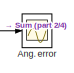
[diagram: root canvas - part 1/4, top center region]
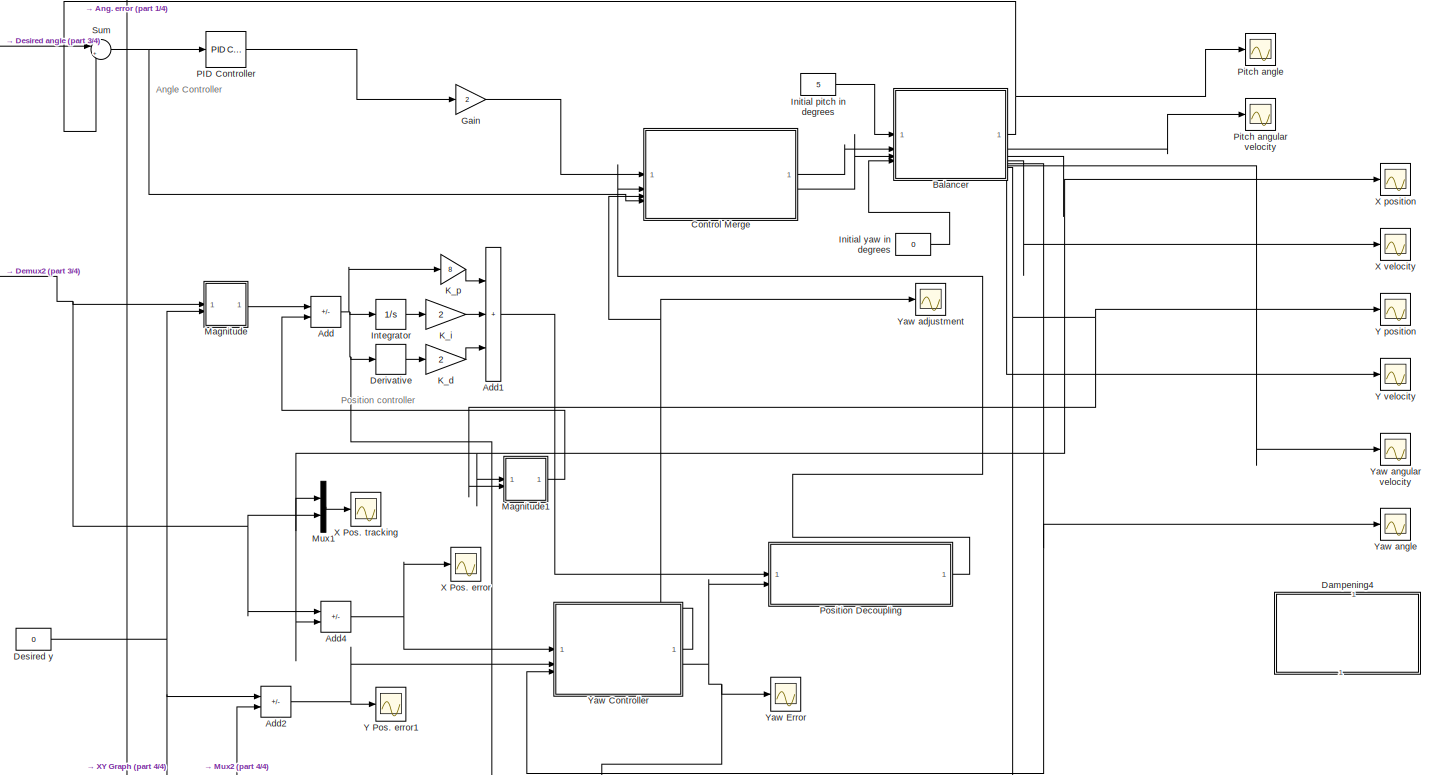
[diagram: root canvas - part 2/4, full width, middle band]
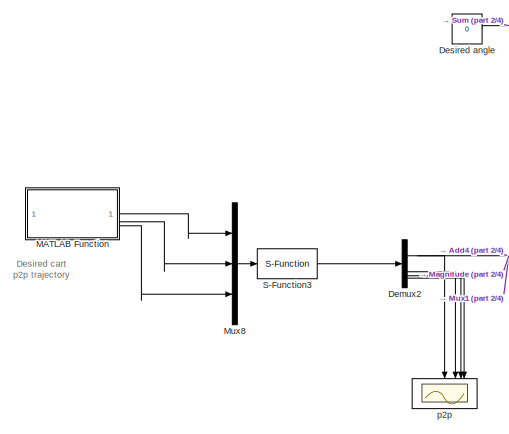
[diagram: root canvas - part 3/4, top left region]
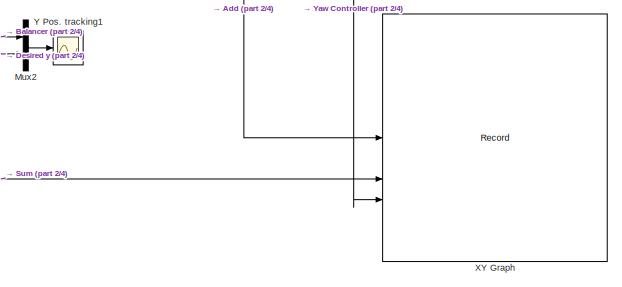
[diagram: root canvas - part 4/4, bottom center region]
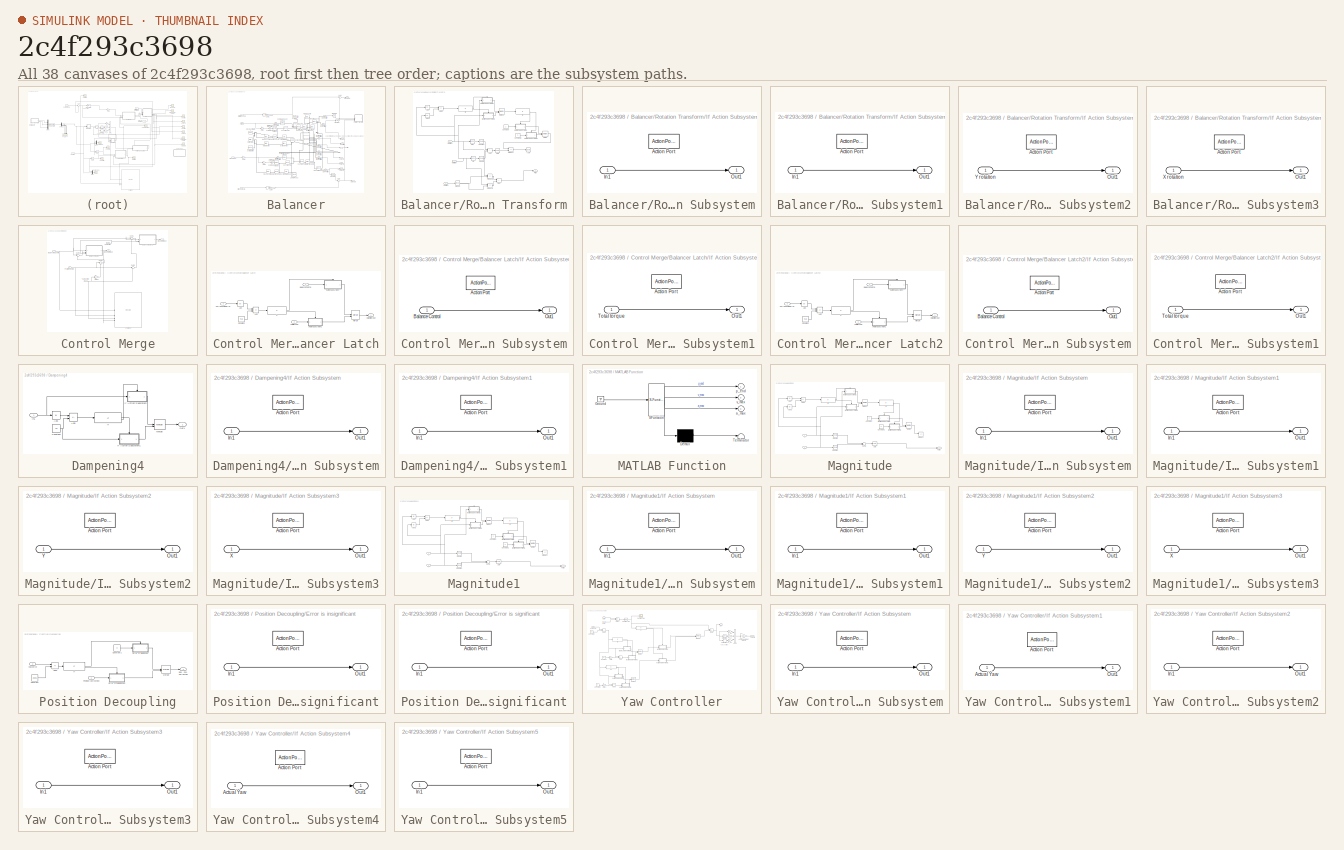
[diagram: thumbnail index - all 38 canvases of the model, root first then tree order]
MODEL slx_2c4f293c3698
KIND model
CONFIG AbsTol = auto
CONFIG EnableMultiTasking = off
CONFIG FixedStep = 0.01
CONFIG MaxStep = 0.01
CONFIG MinStep = auto
CONFIG RelTol = 1e-3
CONFIG SampleTimeConstraint = Unconstrained
CONFIG SolverName = ode15s
CONFIG StartTime = 0.0
CONFIG StopTime = 12
BLOCK [Sum] Add
  IconShape = rectangular
  Inputs = +-
BLOCK [Sum] Add1
  IconShape = rectangular
  Inputs = +++
BLOCK [Sum] Add2
  IconShape = rectangular
  Inputs = +-
BLOCK [Sum] Add4
  IconShape = rectangular
  Inputs = +-
BLOCK [Scope] Ang. error
  ActiveDisplayYMaximum = 0.54316117545047715
  ActiveDisplayYMinimum = -0.39564274739400279
  DataLoggingVariableName = ScopeData2
  Floating = off
  GraphicalSettings = {"Style":{"BackgroundColor":[0.12941176470588237,0.12941176470588237,0.12941176470588237],"AxesColor":[0.07058823529411765,0.07058823529411765,0.07058823529411765],"LabelsColor":[0.8509803921568627,0.8509803921568627,0.8509803921568627],"PreserveColors":false,"Visible":[true],"LineStyle":["-"],"LineWidth":[1.5],"BarWidth":[0.9],"LineColor":["auto"],"LineFaceAlpha":[1],"LineEdgeAlpha":[1],"Marker":...<+1971ch>
  MultipleDisplayCache = [{"MaxYLimMag":0.17131,"MaxYLimReal":0.54316117545047715,"MinYLimMag":0,"MinYLimReal":-0.39564274739400279,"PlotAsMagnitudePhase":false,"ShowGrid":true,"ShowLegend":false,"Title":"%<SignalLabel>","YLabel":""}]
  NumInputPorts = 1
  ScopeFrameLocation = window
  WasSavedAsWebScope = on
  WindowPosition = [146.000000,328.000000,560.000000,420.000000,]
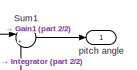
[diagram: Balancer - part 1/2, top right region]
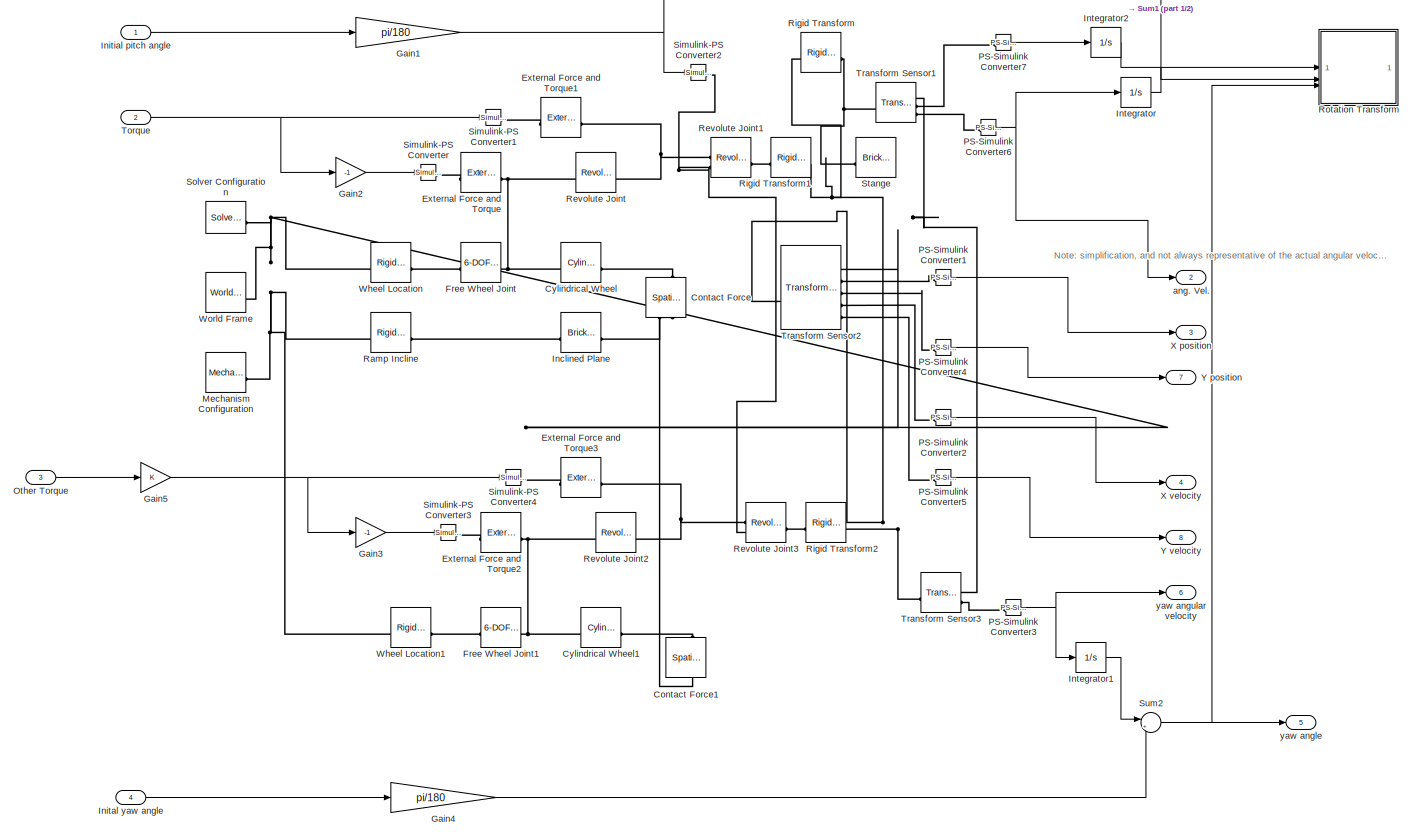
[diagram: Balancer - part 2/2, most of the canvas]
BLOCK [SubSystem] Balancer
BLOCK [Reference] Balancer/Contact Force  REF=sm_lib/Forces and
Torques/Spatial
Contact Force
  NameLocation = right
  SourceBlock = sm_lib/Forces and\nTorques/Spatial\nContact Force
  SourceType = Spatial\nContact Force
BLOCK [Reference] Balancer/Contact Force1  REF=sm_lib/Forces and
Torques/Spatial
Contact Force
  NameLocation = right
  SourceBlock = sm_lib/Forces and\nTorques/Spatial\nContact Force
  SourceType = Spatial\nContact Force
BLOCK [Reference] Balancer/Cylindrical Wheel  REF=sm_lib/Body Elements/Cylindrical Solid
  SourceBlock = sm_lib/Body Elements/Cylindrical Solid
  SourceType = Cylindrical Solid
BLOCK [Reference] Balancer/Cylindrical Wheel1  REF=sm_lib/Body Elements/Cylindrical Solid
  SourceBlock = sm_lib/Body Elements/Cylindrical Solid
  SourceType = Cylindrical Solid
BLOCK [Reference] Balancer/External Force and Torque  REF=sm_lib/Forces and
Torques/External Force
and Torque
  SourceBlock = sm_lib/Forces and\nTorques/External Force\nand Torque
  SourceType = External Force\nand Torque
BLOCK [Reference] Balancer/External Force and Torque1  REF=sm_lib/Forces and
Torques/External Force
and Torque
  SourceBlock = sm_lib/Forces and\nTorques/External Force\nand Torque
  SourceType = External Force\nand Torque
BLOCK [Reference] Balancer/External Force and Torque2  REF=sm_lib/Forces and
Torques/External Force
and Torque
  SourceBlock = sm_lib/Forces and\nTorques/External Force\nand Torque
  SourceType = External Force\nand Torque
BLOCK [Reference] Balancer/External Force and Torque3  REF=sm_lib/Forces and
Torques/External Force
and Torque
  SourceBlock = sm_lib/Forces and\nTorques/External Force\nand Torque
  SourceType = External Force\nand Torque
BLOCK [Reference] Balancer/Free Wheel Joint  REF=sm_lib/Joints/6-DOF Joint
  SourceBlock = sm_lib/Joints/6-DOF Joint
  SourceType = 6-DOF Joint
BLOCK [Reference] Balancer/Free Wheel Joint1  REF=sm_lib/Joints/6-DOF Joint
  SourceBlock = sm_lib/Joints/6-DOF Joint
  SourceType = 6-DOF Joint
BLOCK [Gain] Balancer/Gain1
  Gain = pi/180
BLOCK [Gain] Balancer/Gain2
  Gain = -1
BLOCK [Gain] Balancer/Gain3
  Gain = -1
BLOCK [Gain] Balancer/Gain4
  Gain = pi/180
BLOCK [Gain] Balancer/Gain5
BLOCK [Reference] Balancer/Inclined Plane  REF=sm_lib/Body Elements/Brick Solid
  SourceBlock = sm_lib/Body Elements/Brick Solid
  SourceType = Brick Solid
BLOCK [Inport] Balancer/Inital yaw angle
  Port = 4
BLOCK [Inport] Balancer/Initial pitch angle
BLOCK [Integrator] Balancer/Integrator
BLOCK [Integrator] Balancer/Integrator1
BLOCK [Integrator] Balancer/Integrator2
BLOCK [Reference] Balancer/Mechanism Configuration  REF=sm_lib/Utilities/Mechanism
Configuration
  SourceBlock = sm_lib/Utilities/Mechanism\nConfiguration
  SourceType = Mechanism\nConfiguration
BLOCK [Inport] Balancer/Other Torque
  Port = 3
BLOCK [Reference] Balancer/PS-Simulink Converter1  REF=nesl_utility/PS-Simulink
Converter
  SourceBlock = nesl_utility/PS-Simulink\nConverter
  SourceType = PS-Simulink\nConverter
BLOCK [Reference] Balancer/PS-Simulink Converter2  REF=nesl_utility/PS-Simulink
Converter
  SourceBlock = nesl_utility/PS-Simulink\nConverter
  SourceType = PS-Simulink\nConverter
BLOCK [Reference] Balancer/PS-Simulink Converter3  REF=nesl_utility/PS-Simulink
Converter
  SourceBlock = nesl_utility/PS-Simulink\nConverter
  SourceType = PS-Simulink\nConverter
BLOCK [Reference] Balancer/PS-Simulink Converter4  REF=nesl_utility/PS-Simulink
Converter
  SourceBlock = nesl_utility/PS-Simulink\nConverter
  SourceType = PS-Simulink\nConverter
BLOCK [Reference] Balancer/PS-Simulink Converter5  REF=nesl_utility/PS-Simulink
Converter
  SourceBlock = nesl_utility/PS-Simulink\nConverter
  SourceType = PS-Simulink\nConverter
BLOCK [Reference] Balancer/PS-Simulink Converter6  REF=nesl_utility/PS-Simulink
Converter
  SourceBlock = nesl_utility/PS-Simulink\nConverter
  SourceType = PS-Simulink\nConverter
BLOCK [Reference] Balancer/PS-Simulink Converter7  REF=nesl_utility/PS-Simulink
Converter
  SourceBlock = nesl_utility/PS-Simulink\nConverter
  SourceType = PS-Simulink\nConverter
BLOCK [Reference] Balancer/Ramp Incline  REF=sm_lib/Frames and
Transforms/Rigid
Transform
  SourceBlock = sm_lib/Frames and\nTransforms/Rigid\nTransform
  SourceType = Rigid\nTransform
BLOCK [Reference] Balancer/Revolute Joint  REF=sm_lib/Joints/Revolute Joint
  SourceBlock = sm_lib/Joints/Revolute Joint
  SourceType = Revolute Joint
BLOCK [Reference] Balancer/Revolute Joint1  REF=sm_lib/Joints/Revolute Joint
  SourceBlock = sm_lib/Joints/Revolute Joint
  SourceType = Revolute Joint
BLOCK [Reference] Balancer/Revolute Joint2  REF=sm_lib/Joints/Revolute Joint
  SourceBlock = sm_lib/Joints/Revolute Joint
  SourceType = Revolute Joint
BLOCK [Reference] Balancer/Revolute Joint3  REF=sm_lib/Joints/Revolute Joint
  SourceBlock = sm_lib/Joints/Revolute Joint
  SourceType = Revolute Joint
BLOCK [Reference] Balancer/Rigid Transform  REF=sm_lib/Frames and
Transforms/Rigid
Transform
  SourceBlock = sm_lib/Frames and\nTransforms/Rigid\nTransform
  SourceType = Rigid\nTransform
BLOCK [Reference] Balancer/Rigid Transform1  REF=sm_lib/Frames and
Transforms/Rigid
Transform
  SourceBlock = sm_lib/Frames and\nTransforms/Rigid\nTransform
  SourceType = Rigid\nTransform
BLOCK [Reference] Balancer/Rigid Transform2  REF=sm_lib/Frames and
Transforms/Rigid
Transform
  SourceBlock = sm_lib/Frames and\nTransforms/Rigid\nTransform
  SourceType = Rigid\nTransform
BLOCK [SubSystem] Balancer/Rotation Transform
BLOCK [Abs] Balancer/Rotation Transform/Abs
  SaturateOnIntegerOverflow = off
BLOCK [Abs] Balancer/Rotation Transform/Abs1
  SaturateOnIntegerOverflow = off
BLOCK [Sum] Balancer/Rotation Transform/Add
  IconShape = rectangular
BLOCK [Sum] Balancer/Rotation Transform/Add1
  IconShape = rectangular
  Inputs = +-
BLOCK [Trigonometry] Balancer/Rotation Transform/Asin
  Operator = asin
BLOCK [Constant] Balancer/Rotation Transform/Constant
BLOCK [Constant] Balancer/Rotation Transform/Constant1
  Value = -1
BLOCK [SubSystem] Balancer/Rotation Transform/If Action Subsystem
  TreatAsAtomicUnit = on
BLOCK [ActionPort] Balancer/Rotation Transform/If Action Subsystem/Action Port
  ActionPortLabel = if(u1 > 0)
BLOCK [Inport] Balancer/Rotation Transform/If Action Subsystem/In1
BLOCK [Outport] Balancer/Rotation Transform/If Action Subsystem/Out1
BLOCK [SubSystem] Balancer/Rotation Transform/If Action Subsystem1
  TreatAsAtomicUnit = on
BLOCK [ActionPort] Balancer/Rotation Transform/If Action Subsystem1/Action Port
  ActionPortLabel = else
BLOCK [Inport] Balancer/Rotation Transform/If Action Subsystem1/In1
BLOCK [Outport] Balancer/Rotation Transform/If Action Subsystem1/Out1
BLOCK [SubSystem] Balancer/Rotation Transform/If Action Subsystem2
  TreatAsAtomicUnit = on
BLOCK [ActionPort] Balancer/Rotation Transform/If Action Subsystem2/Action Port
  ActionPortLabel = if(u1 > 0)
BLOCK [Outport] Balancer/Rotation Transform/If Action Subsystem2/Out1
BLOCK [Inport] Balancer/Rotation Transform/If Action Subsystem2/Y rotation
BLOCK [SubSystem] Balancer/Rotation Transform/If Action Subsystem3
  TreatAsAtomicUnit = on
BLOCK [ActionPort] Balancer/Rotation Transform/If Action Subsystem3/Action Port
  ActionPortLabel = else
BLOCK [Outport] Balancer/Rotation Transform/If Action Subsystem3/Out1
BLOCK [Inport] Balancer/Rotation Transform/If Action Subsystem3/X rotation
BLOCK [If] Balancer/Rotation Transform/If1
BLOCK [If] Balancer/Rotation Transform/If2
BLOCK [Merge] Balancer/Rotation Transform/Merge
BLOCK [Merge] Balancer/Rotation Transform/Merge1
BLOCK [Outport] Balancer/Rotation Transform/Pitch
BLOCK [Sum] Balancer/Rotation Transform/Plus
  IconShape = rectangular
BLOCK [Product] Balancer/Rotation Transform/Product
BLOCK [Product] Balancer/Rotation Transform/Product1
BLOCK [Product] Balancer/Rotation Transform/Product2
BLOCK [Trigonometry] Balancer/Rotation Transform/Sin
BLOCK [Trigonometry] Balancer/Rotation Transform/Sin1
BLOCK [Trigonometry] Balancer/Rotation Transform/SinCos
  Operator = sincos
BLOCK [Sqrt] Balancer/Rotation Transform/Sqrt
BLOCK [Math] Balancer/Rotation Transform/Square
  Operator = square
BLOCK [Math] Balancer/Rotation Transform/Square1
  Operator = square
BLOCK [Inport] Balancer/Rotation Transform/X rotation
BLOCK [Inport] Balancer/Rotation Transform/Y rotation
  Port = 2
BLOCK [Inport] Balancer/Rotation Transform/Z rotation
  Port = 3
BLOCK [Reference] Balancer/Simulink-PS Converter  REF=nesl_utility/Simulink-PS
Converter
  SourceBlock = nesl_utility/Simulink-PS\nConverter
  SourceType = Simulink-PS\nConverter
BLOCK [Reference] Balancer/Simulink-PS Converter1  REF=nesl_utility/Simulink-PS
Converter
  SourceBlock = nesl_utility/Simulink-PS\nConverter
  SourceType = Simulink-PS\nConverter
BLOCK [Reference] Balancer/Simulink-PS Converter2  REF=nesl_utility/Simulink-PS
Converter
  SourceBlock = nesl_utility/Simulink-PS\nConverter
  SourceType = Simulink-PS\nConverter
BLOCK [Reference] Balancer/Simulink-PS Converter3  REF=nesl_utility/Simulink-PS
Converter
  SourceBlock = nesl_utility/Simulink-PS\nConverter
  SourceType = Simulink-PS\nConverter
BLOCK [Reference] Balancer/Simulink-PS Converter4  REF=nesl_utility/Simulink-PS
Converter
  SourceBlock = nesl_utility/Simulink-PS\nConverter
  SourceType = Simulink-PS\nConverter
BLOCK [Reference] Balancer/Solver Configuration  REF=nesl_utility/Solver
Configuration
  SourceBlock = nesl_utility/Solver\nConfiguration
  SourceType = Solver\nConfiguration
BLOCK [Reference] Balancer/Stange  REF=sm_lib/Body Elements/Brick Solid
  NameLocation = right
  SourceBlock = sm_lib/Body Elements/Brick Solid
  SourceType = Brick Solid
BLOCK [Sum] Balancer/Sum1
  Inputs = |++
BLOCK [Sum] Balancer/Sum2
  Inputs = |++
BLOCK [Inport] Balancer/Torque
  Port = 2
BLOCK [Reference] Balancer/Transform Sensor1  REF=sm_lib/Frames and
Transforms/Transform
Sensor
  SourceBlock = sm_lib/Frames and\nTransforms/Transform\nSensor
  SourceType = Transform\nSensor
BLOCK [Reference] Balancer/Transform Sensor2  REF=sm_lib/Frames and
Transforms/Transform
Sensor
  SourceBlock = sm_lib/Frames and\nTransforms/Transform\nSensor
  SourceType = Transform\nSensor
BLOCK [Reference] Balancer/Transform Sensor3  REF=sm_lib/Frames and
Transforms/Transform
Sensor
  SourceBlock = sm_lib/Frames and\nTransforms/Transform\nSensor
  SourceType = Transform\nSensor
BLOCK [Reference] Balancer/Wheel Location  REF=sm_lib/Frames and
Transforms/Rigid
Transform
  SourceBlock = sm_lib/Frames and\nTransforms/Rigid\nTransform
  SourceType = Rigid\nTransform
BLOCK [Reference] Balancer/Wheel Location1  REF=sm_lib/Frames and
Transforms/Rigid
Transform
  SourceBlock = sm_lib/Frames and\nTransforms/Rigid\nTransform
  SourceType = Rigid\nTransform
BLOCK [Reference] Balancer/World Frame  REF=sm_lib/Frames and
Transforms/World Frame
  SourceBlock = sm_lib/Frames and\nTransforms/World Frame
  SourceType = World Frame
BLOCK [Outport] Balancer/X position
  Port = 3
BLOCK [Outport] Balancer/X velocity
  Port = 4
BLOCK [Outport] Balancer/Y position
  Port = 7
BLOCK [Outport] Balancer/Y velocity
  Port = 8
BLOCK [Outport] Balancer/ang. Vel.
  Port = 2
BLOCK [Outport] Balancer/pitch angle
BLOCK [Outport] Balancer/yaw angle
  Port = 5
BLOCK [Outport] Balancer/yaw angular velocity
  Port = 6
BLOCK [SubSystem] Control Merge
BLOCK [Inport] Control Merge/Angle error
  Port = 4
BLOCK [SubSystem] Control Merge/Balancer Latch
BLOCK [Abs] Control Merge/Balancer Latch/Abs
  SaturateOnIntegerOverflow = off
BLOCK [Sum] Control Merge/Balancer Latch/Add
  IconShape = rectangular
  Inputs = +-
BLOCK [Inport] Control Merge/Balancer Latch/Balance Control
BLOCK [Constant] Control Merge/Balancer Latch/Constant
  Value = 0.15
BLOCK [Inport] Control Merge/Balancer Latch/Current Angle Error
  Port = 3
BLOCK [If] Control Merge/Balancer Latch/If
BLOCK [SubSystem] Control Merge/Balancer Latch/If Action Subsystem
  TreatAsAtomicUnit = on
BLOCK [ActionPort] Control Merge/Balancer Latch/If Action Subsystem/Action Port
  ActionPortLabel = if(u1 > 0)
BLOCK [Inport] Control Merge/Balancer Latch/If Action Subsystem/Balance Control
BLOCK [Outport] Control Merge/Balancer Latch/If Action Subsystem/Out1
BLOCK [SubSystem] Control Merge/Balancer Latch/If Action Subsystem1
  TreatAsAtomicUnit = on
BLOCK [ActionPort] Control Merge/Balancer Latch/If Action Subsystem1/Action Port
  ActionPortLabel = else
BLOCK [Outport] Control Merge/Balancer Latch/If Action Subsystem1/Out1
BLOCK [Inport] Control Merge/Balancer Latch/If Action Subsystem1/Total torque
BLOCK [Merge] Control Merge/Balancer Latch/Merge
BLOCK [Outport] Control Merge/Balancer Latch/Output torque
BLOCK [Inport] Control Merge/Balancer Latch/Total torque
  Port = 2
BLOCK [SubSystem] Control Merge/Balancer Latch2
BLOCK [Abs] Control Merge/Balancer Latch2/Abs
  SaturateOnIntegerOverflow = off
BLOCK [Sum] Control Merge/Balancer Latch2/Add
  IconShape = rectangular
  Inputs = +-
BLOCK [Inport] Control Merge/Balancer Latch2/Balance Control
BLOCK [Constant] Control Merge/Balancer Latch2/Constant
  Value = 0.15
BLOCK [Inport] Control Merge/Balancer Latch2/Current Angle Error
  Port = 3
BLOCK [If] Control Merge/Balancer Latch2/If
BLOCK [SubSystem] Control Merge/Balancer Latch2/If Action Subsystem
  TreatAsAtomicUnit = on
BLOCK [ActionPort] Control Merge/Balancer Latch2/If Action Subsystem/Action Port
  ActionPortLabel = if(u1 > 0)
BLOCK [Inport] Control Merge/Balancer Latch2/If Action Subsystem/Balance Control
BLOCK [Outport] Control Merge/Balancer Latch2/If Action Subsystem/Out1
BLOCK [SubSystem] Control Merge/Balancer Latch2/If Action Subsystem1
  TreatAsAtomicUnit = on
BLOCK [ActionPort] Control Merge/Balancer Latch2/If Action Subsystem1/Action Port
  ActionPortLabel = else
BLOCK [Outport] Control Merge/Balancer Latch2/If Action Subsystem1/Out1
BLOCK [Inport] Control Merge/Balancer Latch2/If Action Subsystem1/Total torque
BLOCK [Merge] Control Merge/Balancer Latch2/Merge
BLOCK [Outport] Control Merge/Balancer Latch2/Output torque
BLOCK [Inport] Control Merge/Balancer Latch2/Total torque
  Port = 2
BLOCK [Inport] Control Merge/Balancing Control
BLOCK [Gain] Control Merge/Gain2
  Gain = -1
BLOCK [Inport] Control Merge/Position Control
  Port = 2
BLOCK [Sum] Control Merge/Sum1
  Inputs = |++
BLOCK [Sum] Control Merge/Sum3
  Inputs = |++
BLOCK [Sum] Control Merge/Sum4
  Inputs = |++
BLOCK [Sum] Control Merge/Sum5
  Inputs = |++
BLOCK [Outport] Control Merge/Wheel 1 torque
BLOCK [Outport] Control Merge/Wheel 2 torque
  Port = 2
BLOCK [Record] Control Merge/XY Graph
  CompatibilityTag = XY
  FileSettingsInternal = {"entries":[{"content":{"excelSettings":{"content":{},"type":"Streamout.ExcelSettings"},"parquetSettings":{"content":{},"type":"Streamout.ParquetSettings"}},"type":"Streamout.FileSettingStorage","uuid":""}],"packageUris":["http:\/\/schema.mathworks.com\/mf0\/streamout_blocks\/R2020a"],"version":"1.0"}
  FrameSettings = [0, 0, 0, 0]
  Layout = [1 1]
  NumPorts = 4.0
  SignalsInternal = {"entries":[{"content":{"signals":[{"content":{"blockPath":[],"dimensions":[1],"domain":"","lineColor":"#a2142f","port":1,"sid":[""],"signalID":1,"signalName":"Balancing Control"},"type":"RecordBlkView.Signal","uuid":""},{"content":{"blockPath":[],"dimensions":[1],"domain":"","lineColor":"#b746ff","lineWidth":2,"plots":[ 1 ],"port":3,"sid":[""],"signalID":2,"signalName":"Yaw Control"},"type":"Reco...<+570ch>
BLOCK [Inport] Control Merge/Yaw Control
  Port = 3
BLOCK [SubSystem] Dampening4
  PortSchema = {"entries":[{"content":{"sides":[{"content":{},"type":"ConnectorPlacement.EquallySpacedRectSide","uuid":"288d66d4-e21c-4e3b-82cb-5f5bcf0eea2b"},{"content":{"side":"RIGHT"},"type":"ConnectorPlacement.EquallySpacedRectSide","uuid":"ad8b40a1-2d5a-40e2-b991-afd0cedf3fe5"},{"content":{"connectorIds":["In1"],"side":"TOP"},"type":"ConnectorPlacement.EquallySpacedRectSide","uuid":"d68248f0-d1bd-4ec0-a5ff-...<+349ch>
BLOCK [Abs] Dampening4/Abs
  SaturateOnIntegerOverflow = off
BLOCK [Sum] Dampening4/Add
  IconShape = rectangular
  Inputs = +-
BLOCK [Constant] Dampening4/Constant
  Value = 10
BLOCK [If] Dampening4/If
BLOCK [SubSystem] Dampening4/If Action Subsystem
  TreatAsAtomicUnit = on
BLOCK [ActionPort] Dampening4/If Action Subsystem/Action Port
  ActionPortLabel = else
BLOCK [Inport] Dampening4/If Action Subsystem/In1
BLOCK [Outport] Dampening4/If Action Subsystem/Out1
BLOCK [SubSystem] Dampening4/If Action Subsystem1
  TreatAsAtomicUnit = on
BLOCK [ActionPort] Dampening4/If Action Subsystem1/Action Port
  ActionPortLabel = if(u1 > 0)
BLOCK [Inport] Dampening4/If Action Subsystem1/In1
BLOCK [Outport] Dampening4/If Action Subsystem1/Out1
BLOCK [Inport] Dampening4/In1
BLOCK [Merge] Dampening4/Merge
BLOCK [Outport] Dampening4/Out1
BLOCK [Demux] Demux2
BLOCK [Derivative] Derivative
BLOCK [Constant] Desired angle
  Value = 0
BLOCK [Constant] Desired y
  Value = 0
BLOCK [Gain] Gain
  Gain = 2
BLOCK [Constant] Initial pitch in degrees
  Value = 5
BLOCK [Constant] Initial yaw in degrees
  Value = 0
BLOCK [Integrator] Integrator
BLOCK [Gain] K_d
  Gain = 2
BLOCK [Gain] K_i
  Gain = 2
BLOCK [Gain] K_p
  Gain = 8
BLOCK [SubSystem] MATLAB Function
  ErrorFcn = Stateflow.Translate.translate
  PermitHierarchicalResolution = ExplicitOnly
  SFBlockType = MATLAB Function
  TreatAsAtomicUnit = on
BLOCK [Demux] MATLAB Function/ Demux 
  Outputs = 1
BLOCK [Ground] MATLAB Function/ Ground 
BLOCK [S-Function] MATLAB Function/ SFunction 
  EnableBusSupport = off
  FunctionName = sf_sfun
  PortCounts = [1 4]
  SFcnIsStateOwnerBlock = off
  SFunctionDeploymentMode = off
  Tag = Stateflow S-Function 4
BLOCK [Terminator] MATLAB Function/ Terminator 
BLOCK [Outport] MATLAB Function/a_max
  Port = 3
BLOCK [Outport] MATLAB Function/p_end
BLOCK [Outport] MATLAB Function/v_max
  Port = 2
BLOCK [SubSystem] Magnitude
BLOCK [Abs] Magnitude/Abs
  SaturateOnIntegerOverflow = off
BLOCK [Abs] Magnitude/Abs1
  SaturateOnIntegerOverflow = off
BLOCK [Sum] Magnitude/Add1
  IconShape = rectangular
  Inputs = +-
BLOCK [Constant] Magnitude/Constant
BLOCK [Constant] Magnitude/Constant1
  Value = -1
BLOCK [SubSystem] Magnitude/If Action Subsystem
  TreatAsAtomicUnit = on
BLOCK [ActionPort] Magnitude/If Action Subsystem/Action Port
  ActionPortLabel = if(u1 > 0)
BLOCK [Inport] Magnitude/If Action Subsystem/In1
BLOCK [Outport] Magnitude/If Action Subsystem/Out1
BLOCK [SubSystem] Magnitude/If Action Subsystem1
  TreatAsAtomicUnit = on
BLOCK [ActionPort] Magnitude/If Action Subsystem1/Action Port
  ActionPortLabel = else
BLOCK [Inport] Magnitude/If Action Subsystem1/In1
BLOCK [Outport] Magnitude/If Action Subsystem1/Out1
BLOCK [SubSystem] Magnitude/If Action Subsystem2
  TreatAsAtomicUnit = on
BLOCK [ActionPort] Magnitude/If Action Subsystem2/Action Port
  ActionPortLabel = if(u1 > 0)
BLOCK [Outport] Magnitude/If Action Subsystem2/Out1
BLOCK [Inport] Magnitude/If Action Subsystem2/Y
BLOCK [SubSystem] Magnitude/If Action Subsystem3
  TreatAsAtomicUnit = on
BLOCK [ActionPort] Magnitude/If Action Subsystem3/Action Port
  ActionPortLabel = else
BLOCK [Outport] Magnitude/If Action Subsystem3/Out1
BLOCK [Inport] Magnitude/If Action Subsystem3/X
BLOCK [If] Magnitude/If1
BLOCK [If] Magnitude/If2
BLOCK [Merge] Magnitude/Merge
BLOCK [Merge] Magnitude/Merge1
BLOCK [Product] Magnitude/Product
BLOCK [Sqrt] Magnitude/Sqrt
BLOCK [Math] Magnitude/Square
  Operator = square
BLOCK [Math] Magnitude/Square1
  Operator = square
BLOCK [Sum] Magnitude/Sum2
  Inputs = |++
BLOCK [Outport] Magnitude/Total
BLOCK [Inport] Magnitude/X
BLOCK [Inport] Magnitude/Y
  Port = 2
BLOCK [SubSystem] Magnitude1
BLOCK [Abs] Magnitude1/Abs
  SaturateOnIntegerOverflow = off
BLOCK [Abs] Magnitude1/Abs1
  SaturateOnIntegerOverflow = off
BLOCK [Sum] Magnitude1/Add1
  IconShape = rectangular
  Inputs = +-
BLOCK [Constant] Magnitude1/Constant
BLOCK [Constant] Magnitude1/Constant1
  Value = -1
BLOCK [SubSystem] Magnitude1/If Action Subsystem
  TreatAsAtomicUnit = on
BLOCK [ActionPort] Magnitude1/If Action Subsystem/Action Port
  ActionPortLabel = if(u1 > 0)
BLOCK [Inport] Magnitude1/If Action Subsystem/In1
BLOCK [Outport] Magnitude1/If Action Subsystem/Out1
BLOCK [SubSystem] Magnitude1/If Action Subsystem1
  TreatAsAtomicUnit = on
BLOCK [ActionPort] Magnitude1/If Action Subsystem1/Action Port
  ActionPortLabel = else
BLOCK [Inport] Magnitude1/If Action Subsystem1/In1
BLOCK [Outport] Magnitude1/If Action Subsystem1/Out1
BLOCK [SubSystem] Magnitude1/If Action Subsystem2
  TreatAsAtomicUnit = on
BLOCK [ActionPort] Magnitude1/If Action Subsystem2/Action Port
  ActionPortLabel = if(u1 > 0)
BLOCK [Outport] Magnitude1/If Action Subsystem2/Out1
BLOCK [Inport] Magnitude1/If Action Subsystem2/Y
BLOCK [SubSystem] Magnitude1/If Action Subsystem3
  TreatAsAtomicUnit = on
BLOCK [ActionPort] Magnitude1/If Action Subsystem3/Action Port
  ActionPortLabel = else
BLOCK [Outport] Magnitude1/If Action Subsystem3/Out1
BLOCK [Inport] Magnitude1/If Action Subsystem3/X
BLOCK [If] Magnitude1/If1
BLOCK [If] Magnitude1/If2
BLOCK [Merge] Magnitude1/Merge
BLOCK [Merge] Magnitude1/Merge1
BLOCK [Product] Magnitude1/Product
BLOCK [Sqrt] Magnitude1/Sqrt
BLOCK [Math] Magnitude1/Square
  Operator = square
BLOCK [Math] Magnitude1/Square1
  Operator = square
BLOCK [Sum] Magnitude1/Sum2
  Inputs = |++
BLOCK [Outport] Magnitude1/Total
BLOCK [Inport] Magnitude1/X
BLOCK [Inport] Magnitude1/Y
  Port = 2
BLOCK [Mux] Mux1
  DisplayOption = bar
  Inputs = 2
BLOCK [Mux] Mux2
  DisplayOption = bar
  Inputs = 2
BLOCK [Mux] Mux8
  DisplayOption = bar
  Inputs = 3
BLOCK [Reference] PID Controller  REF=slpidlib/PID Controller
  LibrarySourceBlock = simulink/Continuous/PID Controller
  SourceBlock = slpidlib/PID Controller
  SourceType = PID 1dof
BLOCK [Scope] Pitch angle
  ActiveDisplayYMaximum = 0.12384204709107025
  ActiveDisplayYMinimum = 0.029093316586404815
  DataLoggingVariableName = ScopeData3
  Floating = off
  GraphicalSettings = {"AxesScalingProperties":{"AlignXAxis":"Center","AlignYAxis":"Center","AutoScaleXAxisLimits":false,"AxesScaling":"Manual","AxesScalingNumUpdates":10,"ExpandOnly":true,"ScaleAxesLimitsAtStop":false,"XAxisDataRange":100,"YAxisDataRange":80},"DisplayProperties":{"ColorOrder":["auto","auto","auto","auto","auto","auto","auto","auto","auto","auto","auto","auto","auto","auto","auto","auto","auto","auto",...<+1970ch>
  MultipleDisplayCache = [{"MaxYLimMag":0.2435,"MaxYLimReal":0.12384204709107025,"MinYLimMag":0,"MinYLimReal":0.029093316586404815,"PlotAsMagnitudePhase":false,"ShowGrid":true,"ShowLegend":false,"Title":"%<SignalLabel>","YLabel":""}]
  NumInputPorts = 1
  ScopeFrameLocation = window
  WasSavedAsWebScope = on
  WindowPosition = [309.000000,334.000000,560.000000,420.000000,]
BLOCK [Scope] Pitch angular velocity
  ActiveDisplayYMaximum = 0.3872
  ActiveDisplayYMinimum = -0.41999
  DataLoggingVariableName = ScopeData1
  Floating = off
  GraphicalSettings = {"Style":{"BackgroundColor":[0.12941176470588237,0.12941176470588237,0.12941176470588237],"AxesColor":[0.07058823529411765,0.07058823529411765,0.07058823529411765],"LabelsColor":[0.8509803921568627,0.8509803921568627,0.8509803921568627],"PreserveColors":false,"Visible":[true],"LineStyle":["-"],"LineWidth":[1.5],"BarWidth":[0.9],"LineColor":["auto"],"LineFaceAlpha":[1],"LineEdgeAlpha":[1],"Marker":...<+1939ch>
  MultipleDisplayCache = [{"MaxYLimMag":0.41999,"MaxYLimReal":0.3872,"MinYLimMag":0,"MinYLimReal":-0.41999,"PlotAsMagnitudePhase":false,"ShowGrid":true,"ShowLegend":false,"Title":"%<SignalLabel>","YLabel":""}]  <repeated x4 — deduplicated; at blocks: Pitch angular velocity, X velocity, Y velocity, Yaw angular velocity>
  NumInputPorts = 1
  ScopeFrameLocation = window
  WasSavedAsWebScope = on
  WindowPosition = [680.000000,330.000000,560.000000,420.000000,]
BLOCK [SubSystem] Position Decoupling
BLOCK [Sum] Position Decoupling/Add3
  IconShape = rectangular
  Inputs = +-
BLOCK [Constant] Position Decoupling/Constant
  Value = 0.005
BLOCK [Constant] Position Decoupling/Constant1
  Value = 0
BLOCK [SubSystem] Position Decoupling/Error is insignificant
  TreatAsAtomicUnit = on
BLOCK [ActionPort] Position Decoupling/Error is insignificant/Action Port
  ActionPortLabel = else
BLOCK [Inport] Position Decoupling/Error is insignificant/In1
BLOCK [Outport] Position Decoupling/Error is insignificant/Out1
BLOCK [SubSystem] Position Decoupling/Error is significant
  TreatAsAtomicUnit = on
BLOCK [ActionPort] Position Decoupling/Error is significant/Action Port
  ActionPortLabel = if(u1 > 0)
BLOCK [Inport] Position Decoupling/Error is significant/In1
BLOCK [Outport] Position Decoupling/Error is significant/Out1
BLOCK [If] Position Decoupling/If
BLOCK [Merge] Position Decoupling/Merge
BLOCK [Inport] Position Decoupling/Position Correction
BLOCK [Outport] Position Decoupling/Res. Pos. Correction
BLOCK [Inport] Position Decoupling/Yaw Error
  Port = 2
BLOCK [S-Function] S-Function3
  EnableBusSupport = off
  FunctionName = p2p_M
  SFcnIsStateOwnerBlock = off
  SFunctionDeploymentMode = off
BLOCK [Sum] Sum
  Inputs = |+-
BLOCK [Scope] X Pos. error
  ActiveDisplayYMaximum = 0.89882854782393562
  ActiveDisplayYMinimum = -0.56430004444527915
  DataLoggingVariableName = ScopeData1
  Floating = off
  GraphicalSettings = {"AxesScalingProperties":{"AlignXAxis":"Center","AlignYAxis":"Center","AutoScaleXAxisLimits":false,"AxesScaling":"Manual","AxesScalingNumUpdates":10,"ExpandOnly":true,"ScaleAxesLimitsAtStop":false,"XAxisDataRange":100,"YAxisDataRange":80},"DisplayProperties":{"ColorOrder":["auto","auto","auto","auto","auto","auto","auto","auto","auto","auto","auto","auto","auto","auto","auto","auto","auto","auto",...<+1984ch>
  MultipleDisplayCache = [{"MaxYLimMag":0.13458,"MaxYLimReal":0.89882854782393562,"MinYLimMag":0,"MinYLimReal":-0.56430004444527915,"PlotAsMagnitudePhase":false,"ShowGrid":true,"ShowLegend":false,"Title":"%<SignalLabel>","YLabel":""}]
  NumInputPorts = 1
  ScopeFrameLocation = window
  WasSavedAsWebScope = on
  WindowPosition = [691.000000,370.000000,560.000000,434.000000,]
BLOCK [Scope] X Pos. tracking
  ActiveDisplayYMaximum = 0.46960710920678117
  ActiveDisplayYMinimum = -0.19123634367996634
  DataLoggingVariableName = ScopeData1
  Floating = off
  GraphicalSettings = {"AxesScalingProperties":{"AlignXAxis":"Center","AlignYAxis":"Center","AutoScaleXAxisLimits":false,"AxesScaling":"Manual","AxesScalingNumUpdates":10,"ExpandOnly":true,"ScaleAxesLimitsAtStop":false,"XAxisDataRange":100,"YAxisDataRange":80},"DisplayProperties":{"ColorOrder":["auto","auto","auto","auto","auto","auto","auto","auto","auto","auto","auto","auto","auto","auto","auto","auto","auto","auto",...<+2113ch>
  MultipleDisplayCache = [{"MaxYLimMag":0.24299,"MaxYLimReal":0.46960710920678117,"MinYLimMag":0,"MinYLimReal":-0.19123634367996634,"PlotAsMagnitudePhase":false,"ShowGrid":true,"ShowLegend":false,"Title":"%<SignalLabel>","YLabel":""}]
  NumInputPorts = 1
  ScopeFrameLocation = container
  WasSavedAsWebScope = on
  WindowPosition = [320.000000,156.000000,1280.000000,768.000000,]
BLOCK [Scope] X position
  ActiveDisplayYMaximum = 0.24299
  ActiveDisplayYMinimum = -0.05975
  DataLoggingVariableName = ScopeData2
  Floating = off
  GraphicalSettings = {"Style":{"BackgroundColor":[0.12941176470588237,0.12941176470588237,0.12941176470588237],"AxesColor":[0.07058823529411765,0.07058823529411765,0.07058823529411765],"LabelsColor":[0.8509803921568627,0.8509803921568627,0.8509803921568627],"PreserveColors":false,"Visible":[true],"LineStyle":["-"],"LineWidth":[1.5],"BarWidth":[0.9],"LineColor":["auto"],"LineFaceAlpha":[1],"LineEdgeAlpha":[1],"Marker":...<+1941ch>
  MultipleDisplayCache = [{"MaxYLimMag":0.24299,"MaxYLimReal":0.24299,"MinYLimMag":0,"MinYLimReal":-0.05975,"PlotAsMagnitudePhase":false,"ShowGrid":true,"ShowLegend":false,"Title":"%<SignalLabel>","YLabel":""}]
  NumInputPorts = 1
  ScopeFrameLocation = window
  WasSavedAsWebScope = on
  WindowPosition = [1146.000000,325.000000,743.000000,539.000000,]
BLOCK [Scope] X velocity
  ActiveDisplayYMaximum = 0.3872
  ActiveDisplayYMinimum = -0.41999
  DataLoggingVariableName = ScopeData3
  Floating = off
  GraphicalSettings = {"GraphicalSettings":{"LegacySettings":true,"Style":{"AxesScalingProperties":{"ScaleAxesLimitsAtStop":false},"Style":{"AxesColor":"[0 0 0]","ChannelNames":[""],"ColorOrder":"[1 1 0.0666666666666667;0.0745098039215686 0.623529411764706 1;1 0.411764705882353 0.16078431372549;0.392156862745098 0.831372549019608 0.0745098039215686;0.717647058823529 0.274509803921569 1;0.0588235294117647 1 1;1 0.074509...<+432ch>
  NumInputPorts = 1
  WasSavedAsWebScope = on
BLOCK [Record] XY Graph
  CompatibilityTag = XY
  FileSettingsInternal = {"entries":[{"content":{"excelSettings":{"content":{},"type":"Streamout.ExcelSettings"},"parquetSettings":{"content":{},"type":"Streamout.ParquetSettings"}},"type":"Streamout.FileSettingStorage","uuid":""}],"packageUris":["http:\/\/schema.mathworks.com\/mf0\/streamout_blocks\/R2020a"],"version":"1.0"}
  FrameSettings = [0, 0, 0]
  Layout = [1 1]
  NumPorts = 3.0
  SignalsInternal = {"entries":[{"content":{"signals":[{"content":{"blockPath":[],"dimensions":[1],"domain":"","lineColor":"#a2142f","plots":[ 1 ],"port":1,"sid":[""],"signalID":1,"signalName":"Add"},"type":"RecordBlkView.Signal","uuid":""},{"content":{"blockPath":[],"dimensions":[1],"domain":"","lineColor":"#139fff","plots":[ 1 ],"port":2,"sid":[""],"signalID":2,"signalName":"Sum"},"type":"RecordBlkView.Signal","uui...<+365ch>
BLOCK [Scope] Y Pos. error1
  ActiveDisplayYMaximum = 0.84904832068554315
  ActiveDisplayYMinimum = -1.2663698969278916
  DataLoggingVariableName = ScopeData7
  Floating = off
  GraphicalSettings = {"AxesScalingProperties":{"AlignXAxis":"Center","AlignYAxis":"Center","AutoScaleXAxisLimits":false,"AxesScaling":"Manual","AxesScalingNumUpdates":10,"ExpandOnly":true,"ScaleAxesLimitsAtStop":false,"XAxisDataRange":100,"YAxisDataRange":80},"DisplayProperties":{"ColorOrder":["auto","auto","auto","auto","auto","auto","auto","auto","auto","auto","auto","auto","auto","auto","auto","auto","auto","auto",...<+1984ch>
  MultipleDisplayCache = [{"MaxYLimMag":0.13458,"MaxYLimReal":0.84904832068554315,"MinYLimMag":0,"MinYLimReal":-1.2663698969278916,"PlotAsMagnitudePhase":false,"ShowGrid":true,"ShowLegend":false,"Title":"%<SignalLabel>","YLabel":""}]
  NumInputPorts = 1
  ScopeFrameLocation = window
  WasSavedAsWebScope = on
  WindowPosition = [1052.000000,275.000000,560.000000,420.000000,]
BLOCK [Scope] Y Pos. tracking1
  ActiveDisplayYMaximum = 2.1956000871921875
  ActiveDisplayYMinimum = -0.66052723517993284
  DataLoggingVariableName = ScopeData8
  Floating = off
  GraphicalSettings = {"AxesScalingProperties":{"AlignXAxis":"Center","AlignYAxis":"Center","AutoScaleXAxisLimits":false,"AxesScaling":"Manual","AxesScalingNumUpdates":10,"ExpandOnly":true,"ScaleAxesLimitsAtStop":false,"XAxisDataRange":100,"YAxisDataRange":80},"DisplayProperties":{"ColorOrder":["auto","auto","auto","auto","auto","auto","auto","auto","auto","auto","auto","auto","auto","auto","auto","auto","auto","auto",...<+2117ch>
  MultipleDisplayCache = [{"MaxYLimMag":0.24299,"MaxYLimReal":2.1956000871921875,"MinYLimMag":0,"MinYLimReal":-0.66052723517993284,"PlotAsMagnitudePhase":false,"ShowGrid":true,"ShowLegend":false,"Title":"%<SignalLabel>","YLabel":""}]
  NumInputPorts = 1
  ScopeFrameLocation = window
  WasSavedAsWebScope = on
  WindowPosition = [230.000000,130.000000,806.000000,631.000000,]
BLOCK [Scope] Y position
  ActiveDisplayYMaximum = 0.29762969737761369
  ActiveDisplayYMinimum = -0.19550186193298941
  DataLoggingVariableName = ScopeData5
  Floating = off
  GraphicalSettings = {"Style":{"BackgroundColor":[0.12941176470588237,0.12941176470588237,0.12941176470588237],"AxesColor":[0.07058823529411765,0.07058823529411765,0.07058823529411765],"LabelsColor":[0.8509803921568627,0.8509803921568627,0.8509803921568627],"PreserveColors":false,"Visible":[true],"LineStyle":["-"],"LineWidth":[1.5],"BarWidth":[0.9],"LineColor":["auto"],"LineFaceAlpha":[1],"LineEdgeAlpha":[1],"Marker":...<+1985ch>
  MultipleDisplayCache = [{"MaxYLimMag":0.24299,"MaxYLimReal":0.29762969737761369,"MinYLimMag":0,"MinYLimReal":-0.19550186193298941,"PlotAsMagnitudePhase":false,"ShowGrid":true,"ShowLegend":false,"Title":"%<SignalLabel>","YLabel":""}]
  NumInputPorts = 1
  ScopeFrameLocation = window
  WasSavedAsWebScope = on
  WindowPosition = [1160.000000,417.000000,743.000000,539.000000,]
BLOCK [Scope] Y velocity
  ActiveDisplayYMaximum = 0.3872
  ActiveDisplayYMinimum = -0.41999
  DataLoggingVariableName = ScopeData6
  Floating = off
  GraphicalSettings = {"GraphicalSettings":{"LegacySettings":true,"Style":{"AxesScalingProperties":{"ScaleAxesLimitsAtStop":false},"Style":{"AxesColor":"[0 0 0]","ChannelNames":[""],"ColorOrder":"[1 1 0.0666666666666667;0.0745098039215686 0.623529411764706 1;1 0.411764705882353 0.16078431372549;0.392156862745098 0.831372549019608 0.0745098039215686;0.717647058823529 0.274509803921569 1;0.0588235294117647 1 1;1 0.074509...<+432ch>
  NumInputPorts = 1
  WasSavedAsWebScope = on
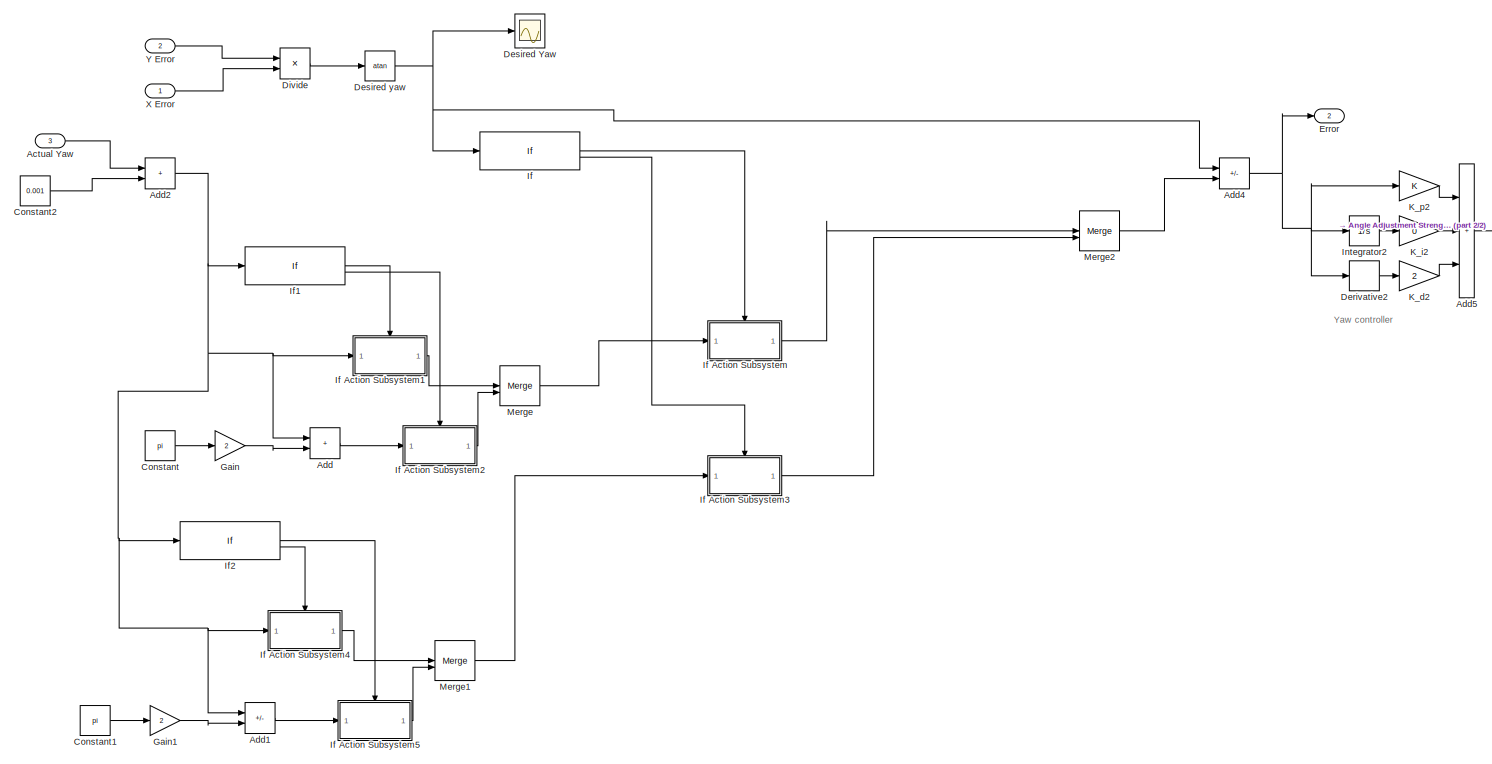
[diagram: Yaw Controller - part 1/2, most of the canvas]
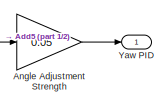
[diagram: Yaw Controller - part 2/2, middle right region]
BLOCK [SubSystem] Yaw Controller
BLOCK [Inport] Yaw Controller/Actual Yaw
  Port = 3
BLOCK [Sum] Yaw Controller/Add
  IconShape = rectangular
BLOCK [Sum] Yaw Controller/Add1
  IconShape = rectangular
  Inputs = +-
BLOCK [Sum] Yaw Controller/Add2
  IconShape = rectangular
BLOCK [Sum] Yaw Controller/Add4
  IconShape = rectangular
  Inputs = +-
BLOCK [Sum] Yaw Controller/Add5
  IconShape = rectangular
  Inputs = +++
BLOCK [Gain] Yaw Controller/Angle Adjustment Strength
  Gain = 0.05
BLOCK [Constant] Yaw Controller/Constant
  Value = pi
BLOCK [Constant] Yaw Controller/Constant1
  Value = pi
BLOCK [Constant] Yaw Controller/Constant2
  Value = 0.001
BLOCK [Derivative] Yaw Controller/Derivative2
BLOCK [Scope] Yaw Controller/Desired Yaw
  ActiveDisplayYMaximum = 1.9271919162451225
  ActiveDisplayYMinimum = -1.8453382887160616
  DataLoggingVariableName = ScopeData12
  Floating = off
  GraphicalSettings = {"AxesScalingProperties":{"AlignXAxis":"Center","AlignYAxis":"Center","AutoScaleXAxisLimits":false,"AxesScaling":"Manual","AxesScalingNumUpdates":10,"ExpandOnly":true,"ScaleAxesLimitsAtStop":false,"XAxisDataRange":100,"YAxisDataRange":80},"DisplayProperties":{"ColorOrder":["auto","auto","auto","auto","auto","auto","auto","auto","auto","auto","auto","auto","auto","auto","auto","auto","auto","auto",...<+2013ch>
  MultipleDisplayCache = [{"MaxYLimMag":0.29730584301947444,"MaxYLimReal":1.9271919162451225,"MinYLimMag":0,"MinYLimReal":-1.8453382887160616,"PlotAsMagnitudePhase":false,"ShowGrid":true,"ShowLegend":false,"Title":"%<SignalLabel>","YLabel":""}]
  NumInputPorts = 1
  ScopeFrameLocation = window
  WasSavedAsWebScope = on
  WindowPosition = [1234.000000,98.000000,560.000000,420.000000,]
BLOCK [Trigonometry] Yaw Controller/Desired yaw
  Operator = atan
BLOCK [Product] Yaw Controller/Divide
  Inputs = */
BLOCK [Outport] Yaw Controller/Error
  Port = 2
BLOCK [Gain] Yaw Controller/Gain
  Gain = 2
BLOCK [Gain] Yaw Controller/Gain1
  Gain = 2
BLOCK [If] Yaw Controller/If
BLOCK [SubSystem] Yaw Controller/If Action Subsystem
  TreatAsAtomicUnit = on
BLOCK [ActionPort] Yaw Controller/If Action Subsystem/Action Port
  ActionPortLabel = if(u1 > 0)
BLOCK [Inport] Yaw Controller/If Action Subsystem/In1
BLOCK [Outport] Yaw Controller/If Action Subsystem/Out1
BLOCK [SubSystem] Yaw Controller/If Action Subsystem1
  TreatAsAtomicUnit = on
BLOCK [ActionPort] Yaw Controller/If Action Subsystem1/Action Port
  ActionPortLabel = if(u1 > 0)
BLOCK [Inport] Yaw Controller/If Action Subsystem1/Actual Yaw
BLOCK [Outport] Yaw Controller/If Action Subsystem1/Out1
BLOCK [SubSystem] Yaw Controller/If Action Subsystem2
  TreatAsAtomicUnit = on
BLOCK [ActionPort] Yaw Controller/If Action Subsystem2/Action Port
  ActionPortLabel = else
BLOCK [Inport] Yaw Controller/If Action Subsystem2/In1
BLOCK [Outport] Yaw Controller/If Action Subsystem2/Out1
BLOCK [SubSystem] Yaw Controller/If Action Subsystem3
  TreatAsAtomicUnit = on
BLOCK [ActionPort] Yaw Controller/If Action Subsystem3/Action Port
  ActionPortLabel = else
BLOCK [Inport] Yaw Controller/If Action Subsystem3/In1
BLOCK [Outport] Yaw Controller/If Action Subsystem3/Out1
BLOCK [SubSystem] Yaw Controller/If Action Subsystem4
  TreatAsAtomicUnit = on
BLOCK [ActionPort] Yaw Controller/If Action Subsystem4/Action Port
  ActionPortLabel = else
BLOCK [Inport] Yaw Controller/If Action Subsystem4/Actual Yaw
BLOCK [Outport] Yaw Controller/If Action Subsystem4/Out1
BLOCK [SubSystem] Yaw Controller/If Action Subsystem5
  TreatAsAtomicUnit = on
BLOCK [ActionPort] Yaw Controller/If Action Subsystem5/Action Port
  ActionPortLabel = if(u1 > 0)
BLOCK [Inport] Yaw Controller/If Action Subsystem5/In1
BLOCK [Outport] Yaw Controller/If Action Subsystem5/Out1
BLOCK [If] Yaw Controller/If1
BLOCK [If] Yaw Controller/If2
BLOCK [Integrator] Yaw Controller/Integrator2
BLOCK [Gain] Yaw Controller/K_d2
  Gain = 2
BLOCK [Gain] Yaw Controller/K_i2
  Gain = 0
BLOCK [Gain] Yaw Controller/K_p2
BLOCK [Merge] Yaw Controller/Merge
BLOCK [Merge] Yaw Controller/Merge1
BLOCK [Merge] Yaw Controller/Merge2
BLOCK [Inport] Yaw Controller/X Error
BLOCK [Inport] Yaw Controller/Y Error
  Port = 2
BLOCK [Outport] Yaw Controller/Yaw PID
BLOCK [Scope] Yaw Error
  ActiveDisplayYMaximum = 7.8928249474904222
  ActiveDisplayYMinimum = -5.580699731343433
  DataLoggingVariableName = ScopeData9
  Floating = off
  GraphicalSettings = {"Style":{"BackgroundColor":[0.12941176470588237,0.12941176470588237,0.12941176470588237],"AxesColor":[0.07058823529411765,0.07058823529411765,0.07058823529411765],"LabelsColor":[0.8509803921568627,0.8509803921568627,0.8509803921568627],"PreserveColors":false,"Visible":[true],"LineStyle":["-"],"LineWidth":[1.5],"BarWidth":[0.9],"LineColor":["auto"],"LineFaceAlpha":[1],"LineEdgeAlpha":[1],"Marker":...<+2013ch>
  MultipleDisplayCache = [{"MaxYLimMag":65.481393606988348,"MaxYLimReal":7.8928249474904222,"MinYLimMag":0,"MinYLimReal":-5.580699731343433,"PlotAsMagnitudePhase":false,"ShowGrid":true,"ShowLegend":false,"Title":"%<SignalLabel>","YLabel":""}]
  NumInputPorts = 1
  ScopeFrameLocation = window
  WasSavedAsWebScope = on
  WindowPosition = [142.000000,287.000000,560.000000,420.000000,]
BLOCK [Scope] Yaw adjustment
  ActiveDisplayYMaximum = 24.068082706997789
  ActiveDisplayYMinimum = -28.944689720849002
  DataLoggingVariableName = ScopeData10
  Floating = off
  GraphicalSettings = {"AxesScalingProperties":{"AlignXAxis":"Center","AlignYAxis":"Center","AutoScaleXAxisLimits":false,"AxesScaling":"auto","AxesScalingNumUpdates":10,"ExpandOnly":true,"ScaleAxesLimitsAtStop":false,"XAxisDataRange":100,"YAxisDataRange":80},"DisplayProperties":{"ColorOrder":["auto","auto","auto","auto","auto","auto","auto","auto","auto","auto","auto","auto","auto","auto","auto","auto","auto","auto","a...<+1980ch>
  MultipleDisplayCache = [{"MaxYLimMag":10,"MaxYLimReal":24.068082706997789,"MinYLimMag":0,"MinYLimReal":-28.944689720849002,"PlotAsMagnitudePhase":false,"ShowGrid":true,"ShowLegend":false,"Title":"%<SignalLabel>","YLabel":""}]
  NumInputPorts = 1
  ScopeFrameLocation = window
  WasSavedAsWebScope = on
  WindowPosition = [167.000000,133.000000,1035.000000,646.000000,]
BLOCK [Scope] Yaw angle
  ActiveDisplayYMaximum = 5.292807941823334E-14
  ActiveDisplayYMinimum = -4.7071920581766663E-14
  Floating = off
  GraphicalSettings = {"AxesScalingProperties":{"AlignXAxis":"Center","AlignYAxis":"Center","AutoScaleXAxisLimits":false,"AxesScaling":"Manual","AxesScalingNumUpdates":10,"ExpandOnly":true,"ScaleAxesLimitsAtStop":false,"XAxisDataRange":100,"YAxisDataRange":80},"DisplayProperties":{"ColorOrder":["auto","auto","auto","auto","auto","auto","auto","auto","auto","auto","auto","auto","auto","auto","auto","auto","auto","auto",...<+2016ch>
  MultipleDisplayCache = [{"MaxYLimMag":0.2632237880805563,"MaxYLimReal":5.292807941823334E-14,"MinYLimMag":0,"MinYLimReal":-4.7071920581766663E-14,"PlotAsMagnitudePhase":false,"ShowGrid":true,"ShowLegend":false,"Title":"%<SignalLabel>","YLabel":""}]
  NumInputPorts = 1
  ScopeFrameLocation = window
  WasSavedAsWebScope = on
  WindowPosition = [167.000000,133.000000,1035.000000,646.000000,]
BLOCK [Scope] Yaw angular velocity
  ActiveDisplayYMaximum = 0.3872
  ActiveDisplayYMinimum = -0.41999
  DataLoggingVariableName = ScopeData4
  Floating = off
  GraphicalSettings = {"Style":{"BackgroundColor":[0.12941176470588237,0.12941176470588237,0.12941176470588237],"AxesColor":[0.07058823529411765,0.07058823529411765,0.07058823529411765],"LabelsColor":[0.8509803921568627,0.8509803921568627,0.8509803921568627],"PreserveColors":false,"Visible":[true],"LineStyle":["-"],"LineWidth":[1.5],"BarWidth":[0.9],"LineColor":["auto"],"LineFaceAlpha":[1],"LineEdgeAlpha":[1],"Marker":...<+1939ch>
  NumInputPorts = 1
  ScopeFrameLocation = window
  WasSavedAsWebScope = on
  WindowPosition = [680.000000,330.000000,560.000000,420.000000,]
BLOCK [Scope] p2p
  ActiveDisplayYMaximum = 0.16875
  ActiveDisplayYMinimum = -0.01875
  DataLogging = on
  DataLoggingDecimateData = on
  DataLoggingDecimation = 1
  DataLoggingLimitDataPoints = on
  DataLoggingMaxPoints = 500000
  DataLoggingSaveFormat = Structure With Time
  DataLoggingVariableName = ScopeData1
  Floating = off
  GraphicalSettings = {"GraphicalSettings":{"LegacySettings":true,"Style":{"AxesScalingProperties":{"ScaleAxesLimitsAtStop":false},"Style":{"AxesColor":"[1 1 1]","BackgroundColor":"[0.501960784313725 0.501960784313725 0.501960784313725]","ChannelNames":["","","",""],"ColorOrder":"[0.0666666666666667 0.443137254901961 0.745098039215686;0.866666666666667 0.329411764705882 0;0.929411764705882 0.694117647058824 0.125490196...<+1283ch>
  LayoutDimensionsString = [4 1]
  MultipleDisplayCache = [{"MaxYLimMag":0.16875,"MaxYLimReal":0.16875,"MinYLimMag":0,"MinYLimReal":-0.01875,"PlotAsMagnitudePhase":false,"ShowGrid":true,"ShowLegend":false,"Title":"%<SignalLabel>","YLabel":""},{"MaxYLimMag":10,"MaxYLimReal":0.1,"MinYLimMag":0,"MinYLimReal":-0.1,"PlotAsMagnitudePhase":false,"ShowGrid":true,"ShowLegend":false,"Title":"%<SignalLabel>","YLabel":""},{"MaxYLimMag":10,"MaxYLimReal":0.1,"MinYLimM...<+294ch>
  NameLocation = left
  NumInputPorts = 4
  ScopeFrameLocation = window
  TimeSpan = 0.4390243902439028
  WasSavedAsWebScope = on
  WindowPosition = [680.000000,330.000000,560.000000,420.000000,]
ANNOTATION (root): Angle Controller
ANNOTATION (root): Desired cart p2p trajectory
ANNOTATION (root): Position controller
ANNOTATION Balancer: Note: simplification, and not always representative of the actual angular velocity
ANNOTATION Yaw Controller: Yaw controller
LINE Add1:1 -> Position Decoupling:1
NET Add2:1 -> Y Pos. error1:1, Yaw Controller:2
NET Add4:1 -> X Pos. error:1, Yaw Controller:1
NET Add:1 -> Derivative:1, Integrator:1, K_p:1, XY Graph:1
NET Balancer/Gain1:1 -> Balancer/Simulink-PS Converter2:1, Balancer/Sum1:1
LINE Balancer/Gain2:1 -> Balancer/Simulink-PS Converter:1
LINE Balancer/Gain3:1 -> Balancer/Simulink-PS Converter3:1
LINE Balancer/Gain4:1 -> Balancer/Sum2:2
NET Balancer/Gain5:1 -> Balancer/Gain3:1, Balancer/Simulink-PS Converter4:1
LINE Balancer/Inital yaw angle:1 -> Balancer/Gain4:1
LINE Balancer/Initial pitch angle:1 -> Balancer/Gain1:1
LINE Balancer/Integrator1:1 -> Balancer/Sum2:1
LINE Balancer/Integrator2:1 -> Balancer/Rotation Transform:1
NET Balancer/Integrator:1 -> Balancer/Rotation Transform:2, Balancer/Sum1:2
LINE Balancer/Other Torque:1 -> Balancer/Gain5:1
LINE Balancer/PS-Simulink Converter1:1 -> Balancer/X position:1
LINE Balancer/PS-Simulink Converter2:1 -> Balancer/X velocity:1
NET Balancer/PS-Simulink Converter3:1 -> Balancer/Integrator1:1, Balancer/yaw angular velocity:1
LINE Balancer/PS-Simulink Converter4:1 -> Balancer/Y position:1
LINE Balancer/PS-Simulink Converter5:1 -> Balancer/Y velocity:1
NET Balancer/PS-Simulink Converter6:1 -> Balancer/Integrator:1, Balancer/ang. Vel.:1
LINE Balancer/PS-Simulink Converter7:1 -> Balancer/Integrator2:1
LINE Balancer/Rotation Transform/Abs1:1 -> Balancer/Rotation Transform/Add1:2
LINE Balancer/Rotation Transform/Abs:1 -> Balancer/Rotation Transform/Add1:1
LINE Balancer/Rotation Transform/Add1:1 -> Balancer/Rotation Transform/If2:1
LINE Balancer/Rotation Transform/Add:1 -> Balancer/Rotation Transform/Sqrt:1
LINE Balancer/Rotation Transform/Constant1:1 -> Balancer/Rotation Transform/If Action Subsystem1:1
LINE Balancer/Rotation Transform/Constant:1 -> Balancer/Rotation Transform/If Action Subsystem:1
LINE Balancer/Rotation Transform/If Action Subsystem/In1:1 -> Balancer/Rotation Transform/If Action Subsystem/Out1:1
LINE Balancer/Rotation Transform/If Action Subsystem1/In1:1 -> Balancer/Rotation Transform/If Action Subsystem1/Out1:1
LINE Balancer/Rotation Transform/If Action Subsystem1:1 -> Balancer/Rotation Transform/Merge:2
LINE Balancer/Rotation Transform/If Action Subsystem2/Y rotation:1 -> Balancer/Rotation Transform/If Action Subsystem2/Out1:1
LINE Balancer/Rotation Transform/If Action Subsystem2:1 -> Balancer/Rotation Transform/Merge1:1
LINE Balancer/Rotation Transform/If Action Subsystem3/X rotation:1 -> Balancer/Rotation Transform/If Action Subsystem3/Out1:1
LINE Balancer/Rotation Transform/If Action Subsystem3:1 -> Balancer/Rotation Transform/Merge1:2
LINE Balancer/Rotation Transform/If Action Subsystem:1 -> Balancer/Rotation Transform/Merge:1
LINE Balancer/Rotation Transform/If1:1 -> Balancer/Rotation Transform/If Action Subsystem:ifaction
LINE Balancer/Rotation Transform/If1:2 -> Balancer/Rotation Transform/If Action Subsystem1:ifaction
LINE Balancer/Rotation Transform/If2:1 -> Balancer/Rotation Transform/If Action Subsystem2:ifaction
LINE Balancer/Rotation Transform/If2:2 -> Balancer/Rotation Transform/If Action Subsystem3:ifaction
LINE Balancer/Rotation Transform/Merge1:1 -> Balancer/Rotation Transform/If1:1
LINE Balancer/Rotation Transform/Merge:1 -> Balancer/Rotation Transform/Product:1
LINE Balancer/Rotation Transform/Plus:1 -> Balancer/Rotation Transform/Pitch:1
LINE Balancer/Rotation Transform/Product1:1 -> Balancer/Rotation Transform/Plus:2
LINE Balancer/Rotation Transform/Product2:1 -> Balancer/Rotation Transform/Plus:1
LINE Balancer/Rotation Transform/Product:1 -> Balancer/Rotation Transform/Asin:1
LINE Balancer/Rotation Transform/Sin1:1 -> Balancer/Rotation Transform/Square1:1
LINE Balancer/Rotation Transform/Sin:1 -> Balancer/Rotation Transform/Square:1
LINE Balancer/Rotation Transform/SinCos:1 -> Balancer/Rotation Transform/Product2:2
LINE Balancer/Rotation Transform/SinCos:2 -> Balancer/Rotation Transform/Product1:2
LINE Balancer/Rotation Transform/Sqrt:1 -> Balancer/Rotation Transform/Product:2
LINE Balancer/Rotation Transform/Square1:1 -> Balancer/Rotation Transform/Add:1
LINE Balancer/Rotation Transform/Square:1 -> Balancer/Rotation Transform/Add:2
NET Balancer/Rotation Transform/X rotation:1 -> Balancer/Rotation Transform/Abs1:1, Balancer/Rotation Transform/If Action Subsystem3:1, Balancer/Rotation Transform/Product2:1, Balancer/Rotation Transform/Sin1:1
NET Balancer/Rotation Transform/Y rotation:1 -> Balancer/Rotation Transform/Abs:1, Balancer/Rotation Transform/If Action Subsystem2:1, Balancer/Rotation Transform/Product1:1, Balancer/Rotation Transform/Sin:1
LINE Balancer/Rotation Transform/Z rotation:1 -> Balancer/Rotation Transform/SinCos:1
LINE Balancer/Sum1:1 -> Balancer/pitch angle:1
NET Balancer/Sum2:1 -> Balancer/Rotation Transform:3, Balancer/yaw angle:1
NET Balancer/Torque:1 -> Balancer/Gain2:1, Balancer/Simulink-PS Converter1:1
NET Balancer:1 -> Pitch angle:1, Sum:2
LINE Balancer:2 -> Pitch angular velocity:1
NET Balancer:3 -> Add4:2, Magnitude1:1, Mux1:1, X position:1
LINE Balancer:4 -> X velocity:1
NET Balancer:5 -> Yaw Controller:3, Yaw angle:1
LINE Balancer:6 -> Yaw angular velocity:1
NET Balancer:7 -> Add2:2, Magnitude1:2, Mux2:1, Y position:1
LINE Balancer:8 -> Y velocity:1
NET Control Merge/Angle error:1 -> Control Merge/Balancer Latch2:3, Control Merge/Balancer Latch:3
LINE Control Merge/Balancer Latch/Abs:1 -> Control Merge/Balancer Latch/Add:1
LINE Control Merge/Balancer Latch/Add:1 -> Control Merge/Balancer Latch/If:1
LINE Control Merge/Balancer Latch/Balance Control:1 -> Control Merge/Balancer Latch/If Action Subsystem:1
LINE Control Merge/Balancer Latch/Constant:1 -> Control Merge/Balancer Latch/Add:2
LINE Control Merge/Balancer Latch/Current Angle Error:1 -> Control Merge/Balancer Latch/Abs:1
LINE Control Merge/Balancer Latch/If Action Subsystem/Balance Control:1 -> Control Merge/Balancer Latch/If Action Subsystem/Out1:1
LINE Control Merge/Balancer Latch/If Action Subsystem1/Total torque:1 -> Control Merge/Balancer Latch/If Action Subsystem1/Out1:1
LINE Control Merge/Balancer Latch/If Action Subsystem1:1 -> Control Merge/Balancer Latch/Merge:2
LINE Control Merge/Balancer Latch/If Action Subsystem:1 -> Control Merge/Balancer Latch/Merge:1
LINE Control Merge/Balancer Latch/If:1 -> Control Merge/Balancer Latch/If Action Subsystem:ifaction
LINE Control Merge/Balancer Latch/If:2 -> Control Merge/Balancer Latch/If Action Subsystem1:ifaction
LINE Control Merge/Balancer Latch/Merge:1 -> Control Merge/Balancer Latch/Output torque:1
LINE Control Merge/Balancer Latch/Total torque:1 -> Control Merge/Balancer Latch/If Action Subsystem1:1
LINE Control Merge/Balancer Latch2/Abs:1 -> Control Merge/Balancer Latch2/Add:1
LINE Control Merge/Balancer Latch2/Add:1 -> Control Merge/Balancer Latch2/If:1
LINE Control Merge/Balancer Latch2/Balance Control:1 -> Control Merge/Balancer Latch2/If Action Subsystem:1
LINE Control Merge/Balancer Latch2/Constant:1 -> Control Merge/Balancer Latch2/Add:2
LINE Control Merge/Balancer Latch2/Current Angle Error:1 -> Control Merge/Balancer Latch2/Abs:1
LINE Control Merge/Balancer Latch2/If Action Subsystem/Balance Control:1 -> Control Merge/Balancer Latch2/If Action Subsystem/Out1:1
LINE Control Merge/Balancer Latch2/If Action Subsystem1/Total torque:1 -> Control Merge/Balancer Latch2/If Action Subsystem1/Out1:1
LINE Control Merge/Balancer Latch2/If Action Subsystem1:1 -> Control Merge/Balancer Latch2/Merge:2
LINE Control Merge/Balancer Latch2/If Action Subsystem:1 -> Control Merge/Balancer Latch2/Merge:1
LINE Control Merge/Balancer Latch2/If:1 -> Control Merge/Balancer Latch2/If Action Subsystem:ifaction
LINE Control Merge/Balancer Latch2/If:2 -> Control Merge/Balancer Latch2/If Action Subsystem1:ifaction
LINE Control Merge/Balancer Latch2/Merge:1 -> Control Merge/Balancer Latch2/Output torque:1
LINE Control Merge/Balancer Latch2/Total torque:1 -> Control Merge/Balancer Latch2/If Action Subsystem1:1
LINE Control Merge/Balancer Latch2:1 -> Control Merge/Wheel 2 torque:1
NET Control Merge/Balancer Latch:1 -> Control Merge/Wheel 1 torque:1, Control Merge/XY Graph:4
NET Control Merge/Balancing Control:1 -> Control Merge/Balancer Latch2:1, Control Merge/Balancer Latch:1, Control Merge/Sum1:1, Control Merge/Sum3:1, Control Merge/XY Graph:1
LINE Control Merge/Gain2:1 -> Control Merge/Sum4:2
NET Control Merge/Position Control:1 -> Control Merge/Sum4:1, Control Merge/Sum5:1, Control Merge/XY Graph:2
LINE Control Merge/Sum1:1 -> Control Merge/Balancer Latch2:2
LINE Control Merge/Sum3:1 -> Control Merge/Balancer Latch:2
LINE Control Merge/Sum4:1 -> Control Merge/Sum3:2
LINE Control Merge/Sum5:1 -> Control Merge/Sum1:2
NET Control Merge/Yaw Control:1 -> Control Merge/Gain2:1, Control Merge/Sum5:2, Control Merge/XY Graph:3
LINE Control Merge:1 -> Balancer:2
LINE Control Merge:2 -> Balancer:3
LINE Dampening4/Abs:1 -> Dampening4/Add:1
LINE Dampening4/Add:1 -> Dampening4/If:1
NET Dampening4/Constant:1 -> Dampening4/Add:2, Dampening4/If Action Subsystem1:1
LINE Dampening4/If Action Subsystem/In1:1 -> Dampening4/If Action Subsystem/Out1:1
LINE Dampening4/If Action Subsystem1/In1:1 -> Dampening4/If Action Subsystem1/Out1:1
LINE Dampening4/If Action Subsystem1:1 -> Dampening4/Merge:2
LINE Dampening4/If Action Subsystem:1 -> Dampening4/Merge:1
LINE Dampening4/If:1 -> Dampening4/If Action Subsystem1:ifaction
LINE Dampening4/If:2 -> Dampening4/If Action Subsystem:ifaction
NET Dampening4/In1:1 -> Dampening4/Abs:1, Dampening4/If Action Subsystem:1
LINE Dampening4/Merge:1 -> Dampening4/Out1:1
NET Demux2:1 -> Add4:1, Magnitude:1, Mux1:2, p2p:1
LINE Demux2:2 -> p2p:2
LINE Demux2:3 -> p2p:3
LINE Demux2:4 -> p2p:4
LINE Derivative:1 -> K_d:1
LINE Desired angle:1 -> Sum:1
NET Desired y:1 -> Add2:1, Magnitude:2, Mux2:2
LINE Gain:1 -> Control Merge:1
LINE Initial pitch in degrees:1 -> Balancer:1
LINE Initial yaw in degrees:1 -> Balancer:4
LINE Integrator:1 -> K_i:1
LINE K_d:1 -> Add1:3
LINE K_i:1 -> Add1:2
LINE K_p:1 -> Add1:1
LINE MATLAB Function:1 -> Mux8:1
LINE MATLAB Function:2 -> Mux8:2
LINE MATLAB Function:3 -> Mux8:3
LINE Magnitude/Abs1:1 -> Magnitude/Add1:2
LINE Magnitude/Abs:1 -> Magnitude/Add1:1
LINE Magnitude/Add1:1 -> Magnitude/If2:1
LINE Magnitude/Constant1:1 -> Magnitude/If Action Subsystem1:1
LINE Magnitude/Constant:1 -> Magnitude/If Action Subsystem:1
LINE Magnitude/If Action Subsystem/In1:1 -> Magnitude/If Action Subsystem/Out1:1
LINE Magnitude/If Action Subsystem1/In1:1 -> Magnitude/If Action Subsystem1/Out1:1
LINE Magnitude/If Action Subsystem1:1 -> Magnitude/Merge:2
LINE Magnitude/If Action Subsystem2/Y:1 -> Magnitude/If Action Subsystem2/Out1:1
LINE Magnitude/If Action Subsystem2:1 -> Magnitude/Merge1:1
LINE Magnitude/If Action Subsystem3/X:1 -> Magnitude/If Action Subsystem3/Out1:1
LINE Magnitude/If Action Subsystem3:1 -> Magnitude/Merge1:2
LINE Magnitude/If Action Subsystem:1 -> Magnitude/Merge:1
LINE Magnitude/If1:1 -> Magnitude/If Action Subsystem:ifaction
LINE Magnitude/If1:2 -> Magnitude/If Action Subsystem1:ifaction
LINE Magnitude/If2:1 -> Magnitude/If Action Subsystem2:ifaction
LINE Magnitude/If2:2 -> Magnitude/If Action Subsystem3:ifaction
LINE Magnitude/Merge1:1 -> Magnitude/If1:1
LINE Magnitude/Merge:1 -> Magnitude/Product:1
LINE Magnitude/Sqrt:1 -> Magnitude/Total:1
LINE Magnitude/Square1:1 -> Magnitude/Sum2:2
LINE Magnitude/Square:1 -> Magnitude/Sum2:1
LINE Magnitude/Sum2:1 -> Magnitude/Sqrt:1
NET Magnitude/X:1 -> Magnitude/Abs1:1, Magnitude/If Action Subsystem3:1, Magnitude/Square:1
NET Magnitude/Y:1 -> Magnitude/Abs:1, Magnitude/If Action Subsystem2:1, Magnitude/Square1:1
LINE Magnitude1/Abs1:1 -> Magnitude1/Add1:2
LINE Magnitude1/Abs:1 -> Magnitude1/Add1:1
LINE Magnitude1/Add1:1 -> Magnitude1/If2:1
LINE Magnitude1/Constant1:1 -> Magnitude1/If Action Subsystem1:1
LINE Magnitude1/Constant:1 -> Magnitude1/If Action Subsystem:1
LINE Magnitude1/If Action Subsystem/In1:1 -> Magnitude1/If Action Subsystem/Out1:1
LINE Magnitude1/If Action Subsystem1/In1:1 -> Magnitude1/If Action Subsystem1/Out1:1
LINE Magnitude1/If Action Subsystem1:1 -> Magnitude1/Merge:2
LINE Magnitude1/If Action Subsystem2/Y:1 -> Magnitude1/If Action Subsystem2/Out1:1
LINE Magnitude1/If Action Subsystem2:1 -> Magnitude1/Merge1:1
LINE Magnitude1/If Action Subsystem3/X:1 -> Magnitude1/If Action Subsystem3/Out1:1
LINE Magnitude1/If Action Subsystem3:1 -> Magnitude1/Merge1:2
LINE Magnitude1/If Action Subsystem:1 -> Magnitude1/Merge:1
LINE Magnitude1/If1:1 -> Magnitude1/If Action Subsystem:ifaction
LINE Magnitude1/If1:2 -> Magnitude1/If Action Subsystem1:ifaction
LINE Magnitude1/If2:1 -> Magnitude1/If Action Subsystem2:ifaction
LINE Magnitude1/If2:2 -> Magnitude1/If Action Subsystem3:ifaction
LINE Magnitude1/Merge1:1 -> Magnitude1/If1:1
LINE Magnitude1/Merge:1 -> Magnitude1/Product:1
LINE Magnitude1/Sqrt:1 -> Magnitude1/Total:1
LINE Magnitude1/Square1:1 -> Magnitude1/Sum2:2
LINE Magnitude1/Square:1 -> Magnitude1/Sum2:1
LINE Magnitude1/Sum2:1 -> Magnitude1/Sqrt:1
NET Magnitude1/X:1 -> Magnitude1/Abs1:1, Magnitude1/If Action Subsystem3:1, Magnitude1/Square:1
NET Magnitude1/Y:1 -> Magnitude1/Abs:1, Magnitude1/If Action Subsystem2:1, Magnitude1/Square1:1
LINE Magnitude1:1 -> Add:2
LINE Magnitude:1 -> Add:1
LINE Mux1:1 -> X Pos. tracking:1
LINE Mux2:1 -> Y Pos. tracking1:1
LINE Mux8:1 -> S-Function3:1
LINE PID Controller:1 -> Gain:1
LINE Position Decoupling/Add3:1 -> Position Decoupling/If:1
LINE Position Decoupling/Constant1:1 -> Position Decoupling/Error is significant:1
LINE Position Decoupling/Constant:1 -> Position Decoupling/Add3:2
LINE Position Decoupling/Error is insignificant/In1:1 -> Position Decoupling/Error is insignificant/Out1:1
LINE Position Decoupling/Error is insignificant:1 -> Position Decoupling/Merge:2
LINE Position Decoupling/Error is significant/In1:1 -> Position Decoupling/Error is significant/Out1:1
LINE Position Decoupling/Error is significant:1 -> Position Decoupling/Merge:1
LINE Position Decoupling/If:1 -> Position Decoupling/Error is significant:ifaction
LINE Position Decoupling/If:2 -> Position Decoupling/Error is insignificant:ifaction
LINE Position Decoupling/Merge:1 -> Position Decoupling/Res. Pos. Correction:1
LINE Position Decoupling/Position Correction:1 -> Position Decoupling/Error is insignificant:1
LINE Position Decoupling/Yaw Error:1 -> Position Decoupling/Add3:1
LINE Position Decoupling:1 -> Control Merge:2
LINE S-Function3:1 -> Demux2:1
NET Sum:1 -> Ang. error:1, Control Merge:4, PID Controller:1, XY Graph:2
LINE Yaw Controller/Actual Yaw:1 -> Yaw Controller/Add2:1
LINE Yaw Controller/Add1:1 -> Yaw Controller/If Action Subsystem5:1
NET Yaw Controller/Add2:1 -> Yaw Controller/Add1:1, Yaw Controller/Add:1, Yaw Controller/If Action Subsystem1:1, Yaw Controller/If Action Subsystem4:1, Yaw Controller/If1:1, Yaw Controller/If2:1
NET Yaw Controller/Add4:1 -> Yaw Controller/Derivative2:1, Yaw Controller/Error:1, Yaw Controller/Integrator2:1, Yaw Controller/K_p2:1
LINE Yaw Controller/Add5:1 -> Yaw Controller/Angle Adjustment Strength:1
LINE Yaw Controller/Add:1 -> Yaw Controller/If Action Subsystem2:1
LINE Yaw Controller/Angle Adjustment Strength:1 -> Yaw Controller/Yaw PID:1
LINE Yaw Controller/Constant1:1 -> Yaw Controller/Gain1:1
LINE Yaw Controller/Constant2:1 -> Yaw Controller/Add2:2
LINE Yaw Controller/Constant:1 -> Yaw Controller/Gain:1
LINE Yaw Controller/Derivative2:1 -> Yaw Controller/K_d2:1
NET Yaw Controller/Desired yaw:1 -> Yaw Controller/Add4:1, Yaw Controller/Desired Yaw:1, Yaw Controller/If:1
LINE Yaw Controller/Divide:1 -> Yaw Controller/Desired yaw:1
LINE Yaw Controller/Gain1:1 -> Yaw Controller/Add1:2
LINE Yaw Controller/Gain:1 -> Yaw Controller/Add:2
LINE Yaw Controller/If Action Subsystem/In1:1 -> Yaw Controller/If Action Subsystem/Out1:1
LINE Yaw Controller/If Action Subsystem1/Actual Yaw:1 -> Yaw Controller/If Action Subsystem1/Out1:1
LINE Yaw Controller/If Action Subsystem1:1 -> Yaw Controller/Merge:1
LINE Yaw Controller/If Action Subsystem2/In1:1 -> Yaw Controller/If Action Subsystem2/Out1:1
LINE Yaw Controller/If Action Subsystem2:1 -> Yaw Controller/Merge:2
LINE Yaw Controller/If Action Subsystem3/In1:1 -> Yaw Controller/If Action Subsystem3/Out1:1
LINE Yaw Controller/If Action Subsystem3:1 -> Yaw Controller/Merge2:2
LINE Yaw Controller/If Action Subsystem4/Actual Yaw:1 -> Yaw Controller/If Action Subsystem4/Out1:1
LINE Yaw Controller/If Action Subsystem4:1 -> Yaw Controller/Merge1:1
LINE Yaw Controller/If Action Subsystem5/In1:1 -> Yaw Controller/If Action Subsystem5/Out1:1
LINE Yaw Controller/If Action Subsystem5:1 -> Yaw Controller/Merge1:2
LINE Yaw Controller/If Action Subsystem:1 -> Yaw Controller/Merge2:1
LINE Yaw Controller/If1:1 -> Yaw Controller/If Action Subsystem1:ifaction
LINE Yaw Controller/If1:2 -> Yaw Controller/If Action Subsystem2:ifaction
LINE Yaw Controller/If2:1 -> Yaw Controller/If Action Subsystem5:ifaction
LINE Yaw Controller/If2:2 -> Yaw Controller/If Action Subsystem4:ifaction
LINE Yaw Controller/If:1 -> Yaw Controller/If Action Subsystem:ifaction
LINE Yaw Controller/If:2 -> Yaw Controller/If Action Subsystem3:ifaction
LINE Yaw Controller/Integrator2:1 -> Yaw Controller/K_i2:1
LINE Yaw Controller/K_d2:1 -> Yaw Controller/Add5:3
LINE Yaw Controller/K_i2:1 -> Yaw Controller/Add5:2
LINE Yaw Controller/K_p2:1 -> Yaw Controller/Add5:1
LINE Yaw Controller/Merge1:1 -> Yaw Controller/If Action Subsystem3:1
LINE Yaw Controller/Merge2:1 -> Yaw Controller/Add4:2
LINE Yaw Controller/Merge:1 -> Yaw Controller/If Action Subsystem:1
LINE Yaw Controller/X Error:1 -> Yaw Controller/Divide:2
LINE Yaw Controller/Y Error:1 -> Yaw Controller/Divide:1
NET Yaw Controller:1 -> Control Merge:3, Yaw adjustment:1
NET Yaw Controller:2 -> Position Decoupling:2, XY Graph:3, Yaw Error:1
PNET net1: Balancer/Contact Force1:LConn1 -- Balancer/Contact Force:LConn1 -- Balancer/Inclined Plane:LConn1
PLINE Balancer/Contact Force1:RConn1 -- Balancer/Cylindrical Wheel1:LConn1
PLINE Balancer/Contact Force:RConn1 -- Balancer/Cylindrical Wheel:LConn1
PNET net2: Balancer/Cylindrical Wheel1:RConn1 -- Balancer/External Force and Torque2:RConn1 -- Balancer/Free Wheel Joint1:RConn1 -- Balancer/Revolute Joint2:LConn1
PNET net3: Balancer/Cylindrical Wheel:RConn1 -- Balancer/External Force and Torque:RConn1 -- Balancer/Free Wheel Joint:RConn1 -- Balancer/Revolute Joint:LConn1
PLINE Balancer/External Force and Torque1:LConn1 -- Balancer/Simulink-PS Converter1:RConn1
PNET net4: Balancer/External Force and Torque1:RConn1 -- Balancer/Revolute Joint1:LConn1 -- Balancer/Revolute Joint:RConn1
PLINE Balancer/External Force and Torque2:LConn1 -- Balancer/Simulink-PS Converter3:RConn1
PLINE Balancer/External Force and Torque3:LConn1 -- Balancer/Simulink-PS Converter4:RConn1
PNET net5: Balancer/External Force and Torque3:RConn1 -- Balancer/Revolute Joint2:RConn1 -- Balancer/Revolute Joint3:LConn1
PLINE Balancer/External Force and Torque:LConn1 -- Balancer/Simulink-PS Converter:RConn1
PLINE Balancer/Free Wheel Joint1:LConn1 -- Balancer/Wheel Location1:RConn1
PLINE Balancer/Free Wheel Joint:LConn1 -- Balancer/Wheel Location:RConn1
PLINE Balancer/Inclined Plane:RConn1 -- Balancer/Ramp Incline:RConn1
PNET net6: Balancer/Mechanism Configuration:RConn1 -- Balancer/Ramp Incline:LConn1 -- Balancer/Solver Configuration:RConn1 -- Balancer/Transform Sensor1:RConn1 -- Balancer/Transform Sensor2:RConn1 -- Balancer/Transform Sensor3:RConn1 -- Balancer/Wheel Location1:LConn1 -- Balancer/Wheel Location:LConn1 -- Balancer/World Frame:RConn1
PLINE Balancer/PS-Simulink Converter1:LConn1 -- Balancer/Transform Sensor2:RConn2
PLINE Balancer/PS-Simulink Converter2:LConn1 -- Balancer/Transform Sensor2:RConn4
PLINE Balancer/PS-Simulink Converter3:LConn1 -- Balancer/Transform Sensor3:RConn2
PLINE Balancer/PS-Simulink Converter4:LConn1 -- Balancer/Transform Sensor2:RConn3
PLINE Balancer/PS-Simulink Converter5:LConn1 -- Balancer/Transform Sensor2:RConn5
PLINE Balancer/PS-Simulink Converter6:LConn1 -- Balancer/Transform Sensor1:RConn3
PLINE Balancer/PS-Simulink Converter7:LConn1 -- Balancer/Transform Sensor1:RConn2
PNET net7: Balancer/Revolute Joint1:LConn2 -- Balancer/Revolute Joint3:LConn2 -- Balancer/Simulink-PS Converter2:RConn1
PLINE Balancer/Revolute Joint1:RConn1 -- Balancer/Rigid Transform1:LConn1
PLINE Balancer/Revolute Joint3:RConn1 -- Balancer/Rigid Transform2:LConn1
PNET net8: Balancer/Rigid Transform1:RConn1 -- Balancer/Rigid Transform2:RConn1 -- Balancer/Rigid Transform:LConn1 -- Balancer/Transform Sensor2:LConn1 -- Balancer/Transform Sensor3:LConn1
PNET net9: Balancer/Rigid Transform:RConn1 -- Balancer/Stange:RConn1 -- Balancer/Transform Sensor1:LConn1
note: NET lines group one-source signal fan-out (src -> all destinations, sorted); 1:1 wires keep LINE; PNET lines group multi-terminal physical nets as a canonical sorted terminal list (undirected conserving connections); 2-terminal nets keep the pairwise PLINE form
CHART MATLAB Function states=1 transitions=1
  STATE_LABEL 'eML_blk_kernel()'
  STATE_LABEL 'SCRIPT:\nfunction [p_end,v_max,a_max] = fcn\n%#codegen\np_end=0.15;%\nv_max=0.08;%\na_max=0.08;%\n'
CHART  states=0 transitions=0
